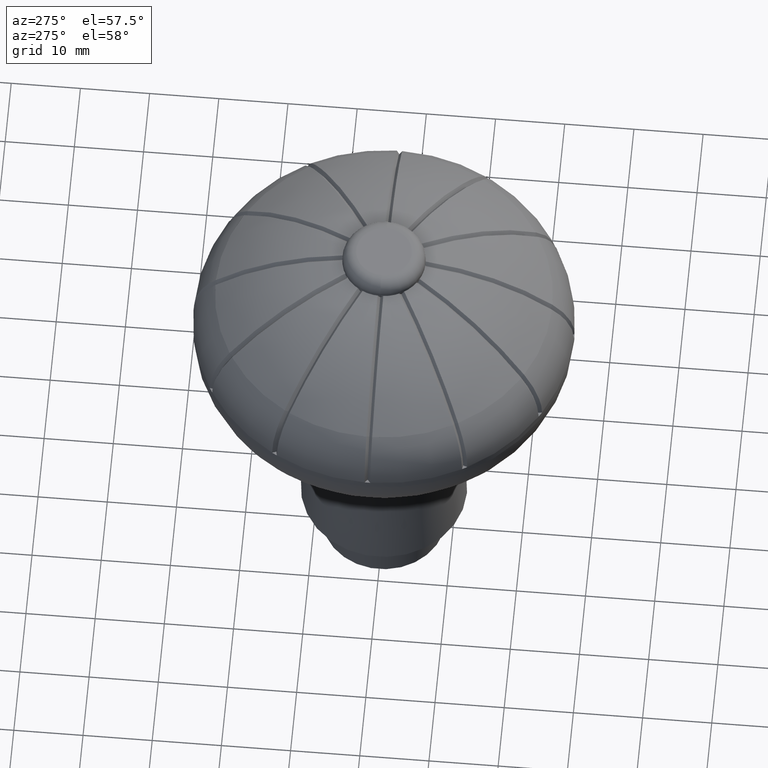
[diagram: clean part render]
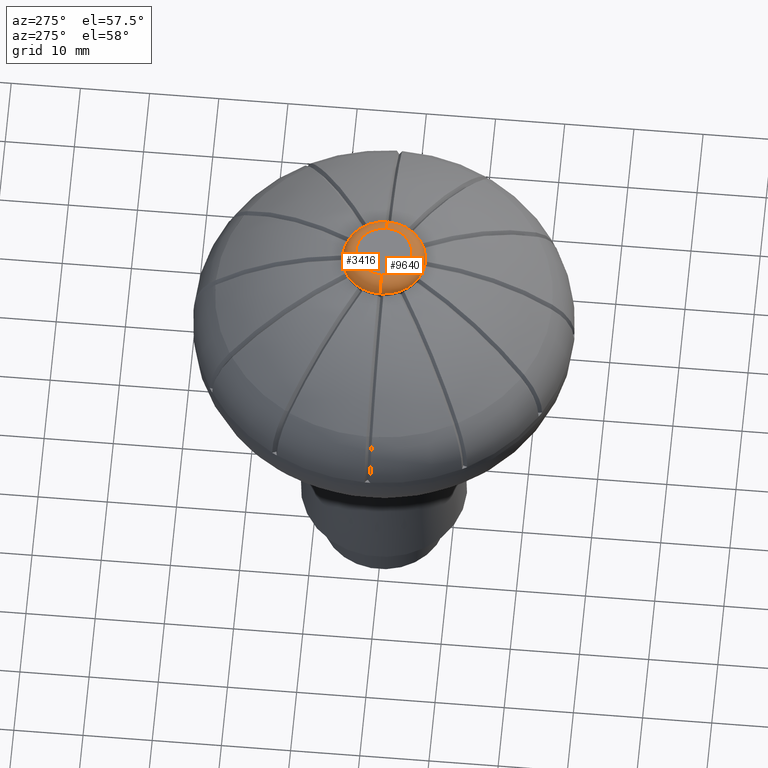
[diagram: same view with one multi-face feature highlighted, each face labeled with its STEP entity id]
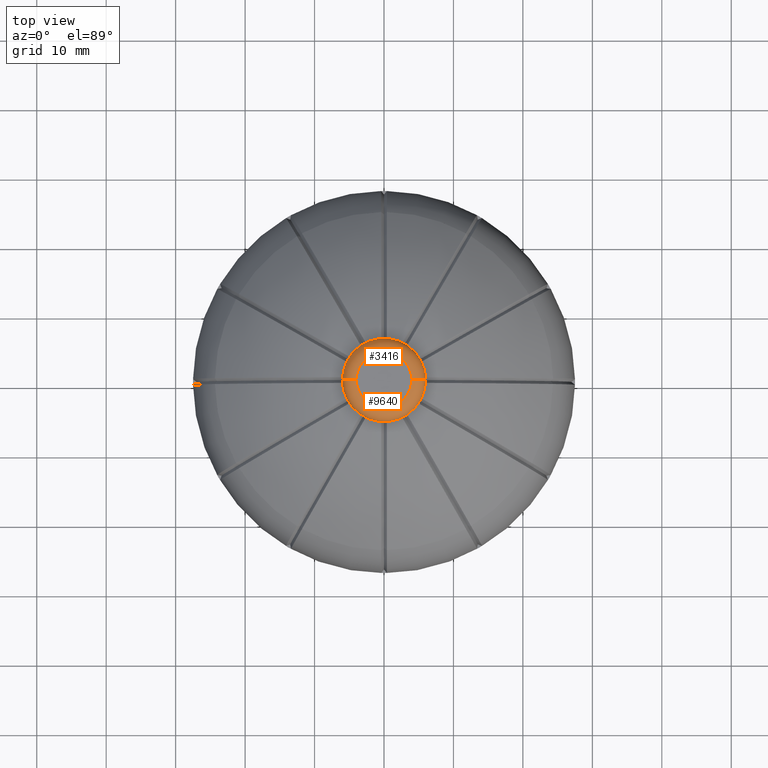
[diagram: same view with one multi-face feature highlighted, each face labeled with its STEP entity id]
A machine part, auxiliary view. The highlighted faces form ONE feature: a constant-radius fillet chain: 2 tangent blend faces with common blend radius 2 mm. The faces share edges in the B-rep.
A second angle (top view) of the same feature is appended — it is thin or edge-on in the first view.
Their STEP definitions:
[1] entity #3416 (Torus):
#220 = ORIENTED_EDGE ( 'NONE', *, *, #9877, .F. ) ;
#315 = EDGE_LOOP ( 'NONE', ( #220, #13702, #1935, #12520 ) ) ;
#1421 = DIRECTION ( 'NONE',  ( -0.0000000000000000000, -0.0000000000000000000, -1.000000000000000000 ) ) ;
#1935 = ORIENTED_EDGE ( 'NONE', *, *, #8709, .F. ) ;
#1986 = DIRECTION ( 'NONE',  ( 1.224646799147353200E-016, 1.000000000000000000, -0.0000000000000000000 ) ) ;
#2001 = CARTESIAN_POINT ( 'NONE',  ( 4.000000000000000900, 0.0000000000000000000, 33.99999999999181500 ) ) ;
#2979 = CIRCLE ( 'NONE', #12418, 2.000000000000000000 ) ;
#3024 = CIRCLE ( 'NONE', #4538, 4.000000000000000900 ) ;
#3063 = DIRECTION ( 'NONE',  ( 0.0000000000000000000, 0.0000000000000000000, 1.000000000000000000 ) ) ;
#3107 = DIRECTION ( 'NONE',  ( 0.0000000000000000000, 0.0000000000000000000, -1.000000000000000000 ) ) ;
#3416 = ADVANCED_FACE ( 'NONE', ( #13294 ), #4253, .T. ) ;
#3587 = AXIS2_PLACEMENT_3D ( 'NONE', #10699, #3063, #12892 ) ;
#4253 = TOROIDAL_SURFACE ( 'NONE', #3587, 4.000000000000000900, 2.000000000000000000 ) ;
#4538 = AXIS2_PLACEMENT_3D ( 'NONE', #12211, #5682, #13287 ) ;
#5284 = CARTESIAN_POINT ( 'NONE',  ( -6.000000000000000900, 7.347880794884120700E-016, 33.99999999999181500 ) ) ;
#5682 = DIRECTION ( 'NONE',  ( 0.0000000000000000000, 0.0000000000000000000, 1.000000000000000000 ) ) ;
#7153 = VERTEX_POINT ( 'NONE', #13612 ) ;
#7973 = CARTESIAN_POINT ( 'NONE',  ( 0.0000000000000000000, 0.0000000000000000000, 33.99999999999181500 ) ) ;
#8529 = CARTESIAN_POINT ( 'NONE',  ( -4.000000000000000900, 4.898587196589413800E-016, 33.99999999999181500 ) ) ;
#8709 = EDGE_CURVE ( 'NONE', #7153, #11156, #3024, .T. ) ;
#8966 = CIRCLE ( 'NONE', #9932, 2.000000000000001800 ) ;
#9091 = DIRECTION ( 'NONE',  ( 1.000000000000000000, 0.0000000000000000000, 0.0000000000000000000 ) ) ;
#9388 = CARTESIAN_POINT ( 'NONE',  ( 6.000000000000000900, 0.0000000000000000000, 33.99999999999181500 ) ) ;
#9602 = VERTEX_POINT ( 'NONE', #9388 ) ;
#9633 = DIRECTION ( 'NONE',  ( -1.000000000000000000, 1.224646799147353500E-016, 0.0000000000000000000 ) ) ;
#9650 = DIRECTION ( 'NONE',  ( 0.0000000000000000000, -1.000000000000000000, 0.0000000000000000000 ) ) ;
#9877 = EDGE_CURVE ( 'NONE', #11529, #9602, #13611, .T. ) ;
#9932 = AXIS2_PLACEMENT_3D ( 'NONE', #2001, #9650, #3107 ) ;
#10699 = CARTESIAN_POINT ( 'NONE',  ( 0.0000000000000000000, 0.0000000000000000000, 33.99999999999181500 ) ) ;
#11156 = VERTEX_POINT ( 'NONE', #13203 ) ;
#11529 = VERTEX_POINT ( 'NONE', #5284 ) ;
#12211 = CARTESIAN_POINT ( 'NONE',  ( 0.0000000000000000000, 0.0000000000000000000, 36.00000000000000700 ) ) ;
#12223 = EDGE_CURVE ( 'NONE', #9602, #7153, #8966, .T. ) ;
#12418 = AXIS2_PLACEMENT_3D ( 'NONE', #8529, #1986, #9633 ) ;
#12520 = ORIENTED_EDGE ( 'NONE', *, *, #12223, .F. ) ;
#12658 = EDGE_CURVE ( 'NONE', #11529, #11156, #2979, .T. ) ;
#12892 = DIRECTION ( 'NONE',  ( 1.000000000000000000, 0.0000000000000000000, 0.0000000000000000000 ) ) ;
#13203 = CARTESIAN_POINT ( 'NONE',  ( -4.000000000000000900, 6.123233995736767300E-016, 36.00000000000000700 ) ) ;
#13287 = DIRECTION ( 'NONE',  ( 1.000000000000000000, 0.0000000000000000000, 0.0000000000000000000 ) ) ;
#13294 = FACE_OUTER_BOUND ( 'NONE', #315, .T. ) ;
#13503 = AXIS2_PLACEMENT_3D ( 'NONE', #7973, #1421, #9091 ) ;
#13611 = CIRCLE ( 'NONE', #13503, 6.000000000000000900 ) ;
#13612 = CARTESIAN_POINT ( 'NONE',  ( 4.000000000000000900, 0.0000000000000000000, 36.00000000000000700 ) ) ;
#13702 = ORIENTED_EDGE ( 'NONE', *, *, #12658, .T. ) ;
[2] entity #9640 (Torus):
#5 = DIRECTION ( 'NONE',  ( -0.0000000000000000000, -0.0000000000000000000, -1.000000000000000000 ) ) ;
#419 = TOROIDAL_SURFACE ( 'NONE', #6919, 4.000000000000000900, 2.000000000000000000 ) ;
#556 = EDGE_CURVE ( 'NONE', #11156, #7153, #4408, .T. ) ;
#1102 = FACE_OUTER_BOUND ( 'NONE', #2363, .T. ) ;
#1986 = DIRECTION ( 'NONE',  ( 1.224646799147353200E-016, 1.000000000000000000, -0.0000000000000000000 ) ) ;
#2001 = CARTESIAN_POINT ( 'NONE',  ( 4.000000000000000900, 0.0000000000000000000, 33.99999999999181500 ) ) ;
#2363 = EDGE_LOOP ( 'NONE', ( #9780, #5030, #6831, #2745 ) ) ;
#2594 = EDGE_CURVE ( 'NONE', #9602, #11529, #11958, .T. ) ;
#2745 = ORIENTED_EDGE ( 'NONE', *, *, #556, .F. ) ;
#2889 = CARTESIAN_POINT ( 'NONE',  ( 0.0000000000000000000, 0.0000000000000000000, 33.99999999999181500 ) ) ;
#2979 = CIRCLE ( 'NONE', #12418, 2.000000000000000000 ) ;
#3107 = DIRECTION ( 'NONE',  ( 0.0000000000000000000, 0.0000000000000000000, -1.000000000000000000 ) ) ;
#4408 = CIRCLE ( 'NONE', #4503, 4.000000000000000900 ) ;
#4503 = AXIS2_PLACEMENT_3D ( 'NONE', #6944, #13479, #12390 ) ;
#5030 = ORIENTED_EDGE ( 'NONE', *, *, #2594, .F. ) ;
#5284 = CARTESIAN_POINT ( 'NONE',  ( -6.000000000000000900, 7.347880794884120700E-016, 33.99999999999181500 ) ) ;
#6343 = AXIS2_PLACEMENT_3D ( 'NONE', #6593, #5, #7675 ) ;
#6593 = CARTESIAN_POINT ( 'NONE',  ( 0.0000000000000000000, 0.0000000000000000000, 33.99999999999181500 ) ) ;
#6831 = ORIENTED_EDGE ( 'NONE', *, *, #12223, .T. ) ;
#6919 = AXIS2_PLACEMENT_3D ( 'NONE', #2889, #10528, #11650 ) ;
#6944 = CARTESIAN_POINT ( 'NONE',  ( 0.0000000000000000000, 0.0000000000000000000, 36.00000000000000700 ) ) ;
#7153 = VERTEX_POINT ( 'NONE', #13612 ) ;
#7675 = DIRECTION ( 'NONE',  ( 1.000000000000000000, 0.0000000000000000000, 0.0000000000000000000 ) ) ;
#8529 = CARTESIAN_POINT ( 'NONE',  ( -4.000000000000000900, 4.898587196589413800E-016, 33.99999999999181500 ) ) ;
#8966 = CIRCLE ( 'NONE', #9932, 2.000000000000001800 ) ;
#9388 = CARTESIAN_POINT ( 'NONE',  ( 6.000000000000000900, 0.0000000000000000000, 33.99999999999181500 ) ) ;
#9602 = VERTEX_POINT ( 'NONE', #9388 ) ;
#9633 = DIRECTION ( 'NONE',  ( -1.000000000000000000, 1.224646799147353500E-016, 0.0000000000000000000 ) ) ;
#9640 = ADVANCED_FACE ( 'NONE', ( #1102 ), #419, .T. ) ;
#9650 = DIRECTION ( 'NONE',  ( 0.0000000000000000000, -1.000000000000000000, 0.0000000000000000000 ) ) ;
#9780 = ORIENTED_EDGE ( 'NONE', *, *, #12658, .F. ) ;
#9932 = AXIS2_PLACEMENT_3D ( 'NONE', #2001, #9650, #3107 ) ;
#10528 = DIRECTION ( 'NONE',  ( 0.0000000000000000000, 0.0000000000000000000, 1.000000000000000000 ) ) ;
#11156 = VERTEX_POINT ( 'NONE', #13203 ) ;
#11529 = VERTEX_POINT ( 'NONE', #5284 ) ;
#11650 = DIRECTION ( 'NONE',  ( 1.000000000000000000, 0.0000000000000000000, 0.0000000000000000000 ) ) ;
#11958 = CIRCLE ( 'NONE', #6343, 6.000000000000000900 ) ;
#12223 = EDGE_CURVE ( 'NONE', #9602, #7153, #8966, .T. ) ;
#12390 = DIRECTION ( 'NONE',  ( 1.000000000000000000, 0.0000000000000000000, 0.0000000000000000000 ) ) ;
#12418 = AXIS2_PLACEMENT_3D ( 'NONE', #8529, #1986, #9633 ) ;
#12658 = EDGE_CURVE ( 'NONE', #11529, #11156, #2979, .T. ) ;
#13203 = CARTESIAN_POINT ( 'NONE',  ( -4.000000000000000900, 6.123233995736767300E-016, 36.00000000000000700 ) ) ;
#13479 = DIRECTION ( 'NONE',  ( 0.0000000000000000000, 0.0000000000000000000, 1.000000000000000000 ) ) ;
#13612 = CARTESIAN_POINT ( 'NONE',  ( 4.000000000000000900, 0.0000000000000000000, 36.00000000000000700 ) ) ;